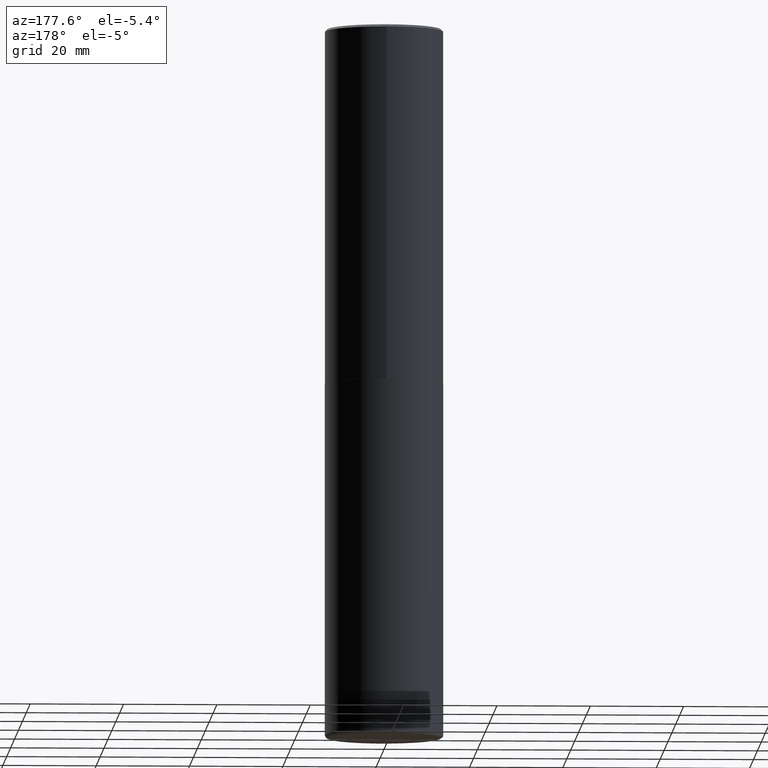
[diagram: clean part render]
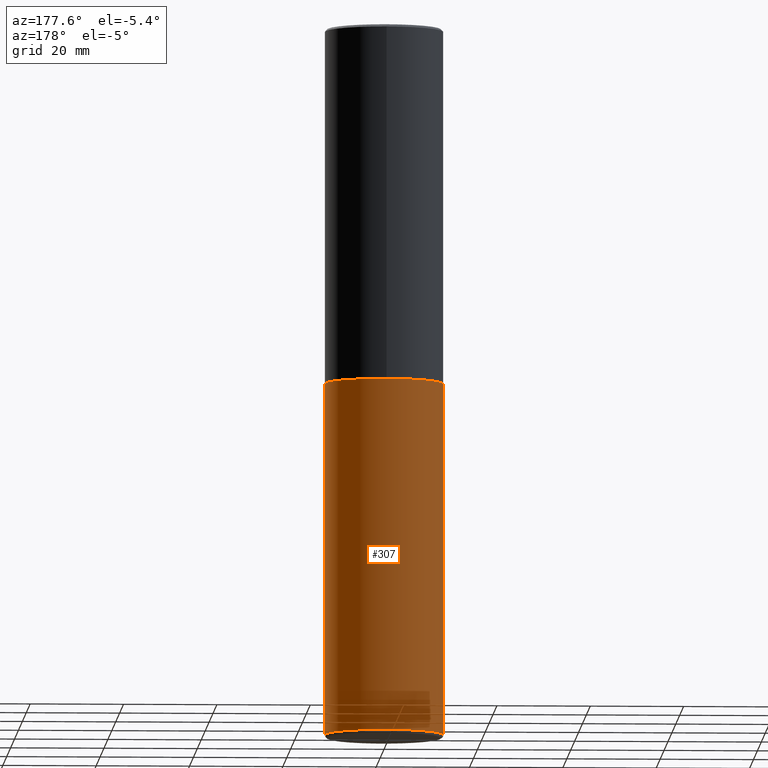
[diagram: same view with one face highlighted and labeled with its STEP entity id]
A machine part, auxiliary view. The second image highlights one B-rep face of the part: STEP entity #307.
In plain terms, the highlighted cylindrical surface (partial cylindrical patch) has radius 12.7 mm, axis along (-0, 0, 1).
Its self-contained STEP definition (entity closure, byte-faithful):
#1 = DIRECTION ( 'NONE',  ( -2.445468806185136597E-29, 3.491481338843145583E-15, 1.000000000000000000 ) ) ;
#10 = VERTEX_POINT ( 'NONE', #353 ) ;
#22 = ORIENTED_EDGE ( 'NONE', *, *, #289, .F. ) ;
#30 = AXIS2_PLACEMENT_3D ( 'NONE', #95, #1, #132 ) ;
#31 = LINE ( 'NONE', #360, #286 ) ;
#48 = CIRCLE ( 'NONE', #318, 0.4999999999999999445 ) ;
#55 = AXIS2_PLACEMENT_3D ( 'NONE', #383, #332, #415 ) ;
#60 = ORIENTED_EDGE ( 'NONE', *, *, #189, .F. ) ;
#84 = CARTESIAN_POINT ( 'NONE',  ( -0.5000000000000003331, -1.729142991409307210E-14, -5.969999999999999751 ) ) ;
#93 = DIRECTION ( 'NONE',  ( 1.000000000000000000, -6.982962677686263555E-15, 0.000000000000000000 ) ) ;
#95 = CARTESIAN_POINT ( 'NONE',  ( 0.000000000000000000, 0.000000000000000000, 0.000000000000000000 ) ) ;
#107 = VERTEX_POINT ( 'NONE', #401 ) ;
#108 = EDGE_CURVE ( 'NONE', #110, #107, #374, .T. ) ;
#110 = VERTEX_POINT ( 'NONE', #84 ) ;
#115 = CARTESIAN_POINT ( 'NONE',  ( -0.5000000000000000000, 3.552713678800500929E-15, -2.459467545127452891E-29 ) ) ;
#132 = DIRECTION ( 'NONE',  ( 1.000000000000000000, -6.982962677686266711E-15, 4.876176775795935793E-29 ) ) ;
#133 = DIRECTION ( 'NONE',  ( -2.445468806185136877E-29, 3.491481338843145188E-15, 1.000000000000000000 ) ) ;
#163 = CARTESIAN_POINT ( 'NONE',  ( 1.459944877292526494E-28, -2.084414359289357934E-14, -5.969999999999999751 ) ) ;
#167 = FACE_OUTER_BOUND ( 'NONE', #348, .T. ) ;
#168 = DIRECTION ( 'NONE',  ( -2.445468806185136597E-29, 3.491481338843145583E-15, 1.000000000000000000 ) ) ;
#189 = EDGE_CURVE ( 'NONE', #10, #364, #31, .T. ) ;
#219 = ORIENTED_EDGE ( 'NONE', *, *, #108, .T. ) ;
#223 = EDGE_CURVE ( 'NONE', #10, #110, #48, .T. ) ;
#247 = DIRECTION ( 'NONE',  ( -2.445468806185136877E-29, 3.491481338843145188E-15, 1.000000000000000000 ) ) ;
#263 = CIRCLE ( 'NONE', #55, 0.5000000000000000000 ) ;
#286 = VECTOR ( 'NONE', #133, 39.37007874015748143 ) ;
#289 = EDGE_CURVE ( 'NONE', #364, #107, #263, .T. ) ;
#301 = CYLINDRICAL_SURFACE ( 'NONE', #30, 0.5000000000000000000 ) ;
#307 = ADVANCED_FACE ( 'NONE', ( #167 ), #301, .T. ) ;
#318 = AXIS2_PLACEMENT_3D ( 'NONE', #163, #168, #93 ) ;
#332 = DIRECTION ( 'NONE',  ( -2.445468806185136597E-29, 3.491481338843145583E-15, 1.000000000000000000 ) ) ;
#348 = EDGE_LOOP ( 'NONE', ( #397, #219, #22, #60 ) ) ;
#353 = CARTESIAN_POINT ( 'NONE',  ( 0.5000000000000003331, -2.433562493173670954E-14, -5.969999999999999751 ) ) ;
#360 = CARTESIAN_POINT ( 'NONE',  ( 0.5000000000000000000, -3.491481338843133355E-15, 2.438088387897967896E-29 ) ) ;
#364 = VERTEX_POINT ( 'NONE', #413 ) ;
#365 = VECTOR ( 'NONE', #247, 39.37007874015748143 ) ;
#374 = LINE ( 'NONE', #115, #365 ) ;
#383 = CARTESIAN_POINT ( 'NONE',  ( 7.336406418555409790E-29, -1.047444401652943635E-14, -3.000000000000000444 ) ) ;
#397 = ORIENTED_EDGE ( 'NONE', *, *, #223, .T. ) ;
#401 = CARTESIAN_POINT ( 'NONE',  ( -0.5000000000000000000, -1.210658012591100613E-14, -3.000000000000000444 ) ) ;
#413 = CARTESIAN_POINT ( 'NONE',  ( 0.5000000000000000000, -1.396592535537257129E-14, -3.000000000000000444 ) ) ;
#415 = DIRECTION ( 'NONE',  ( 1.000000000000000000, -6.982962677686266711E-15, 0.000000000000000000 ) ) ;